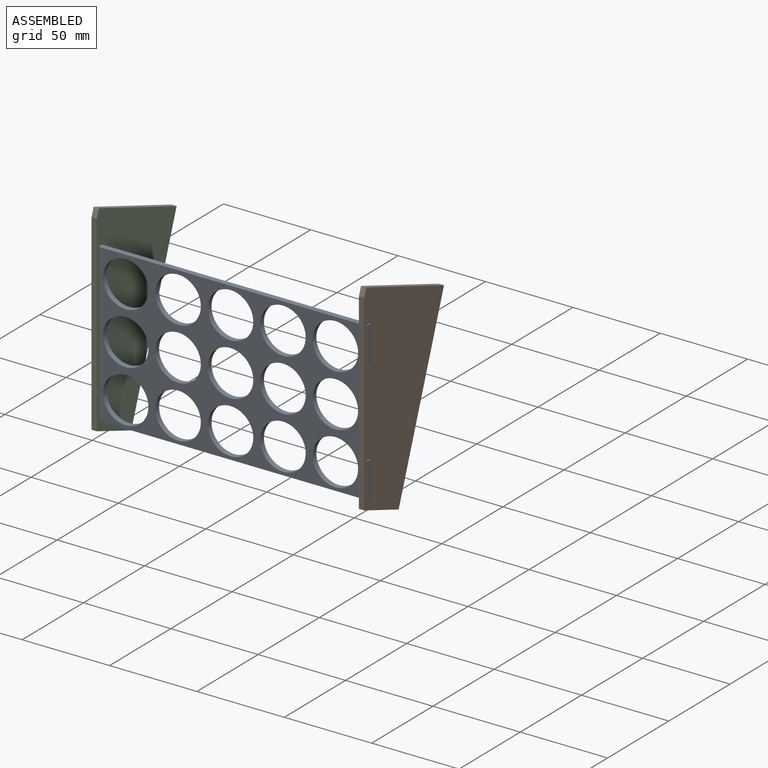
[diagram: assembled view]
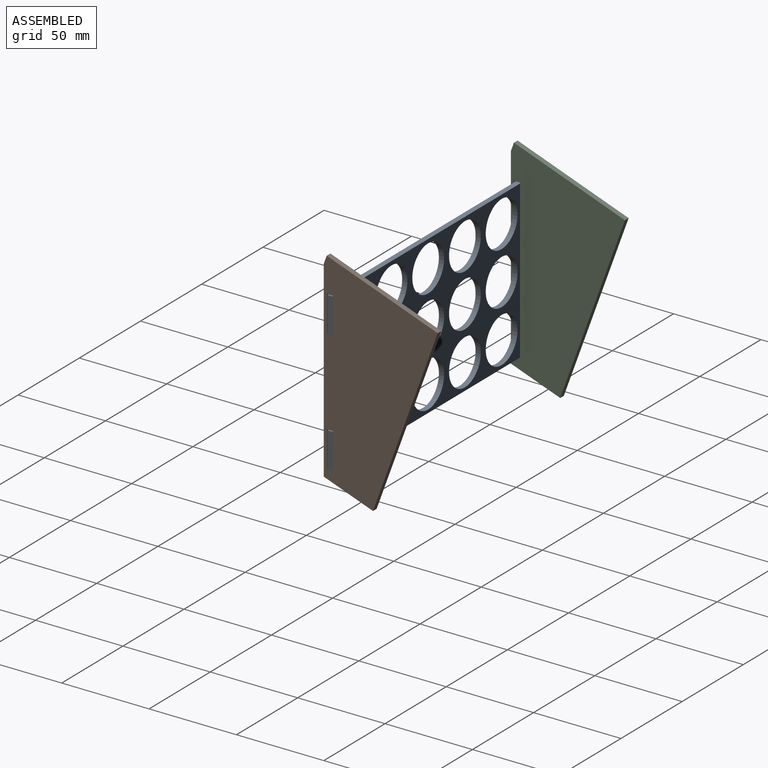
[diagram: assembled view, second angle]
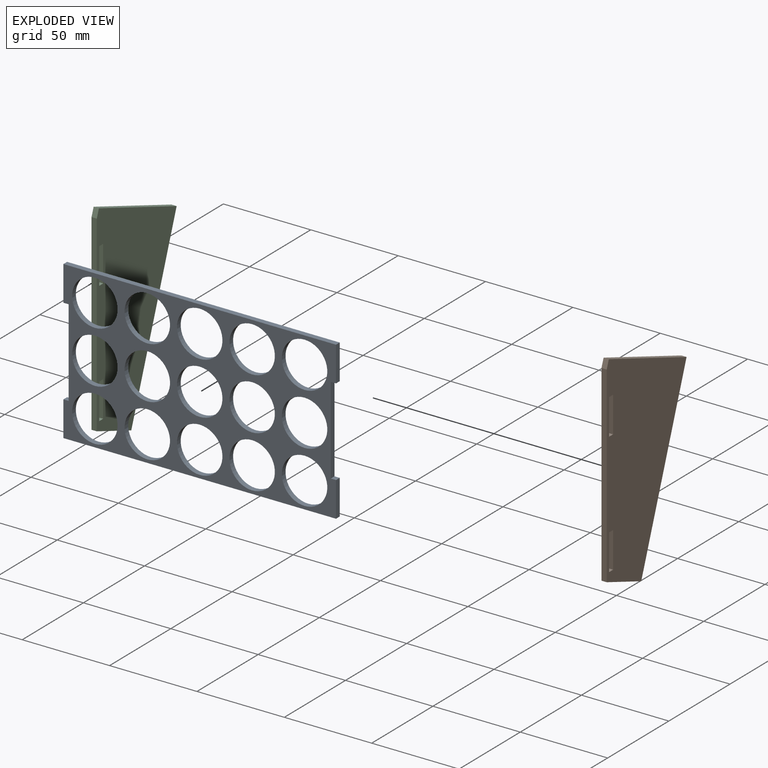
[diagram: exploded view]
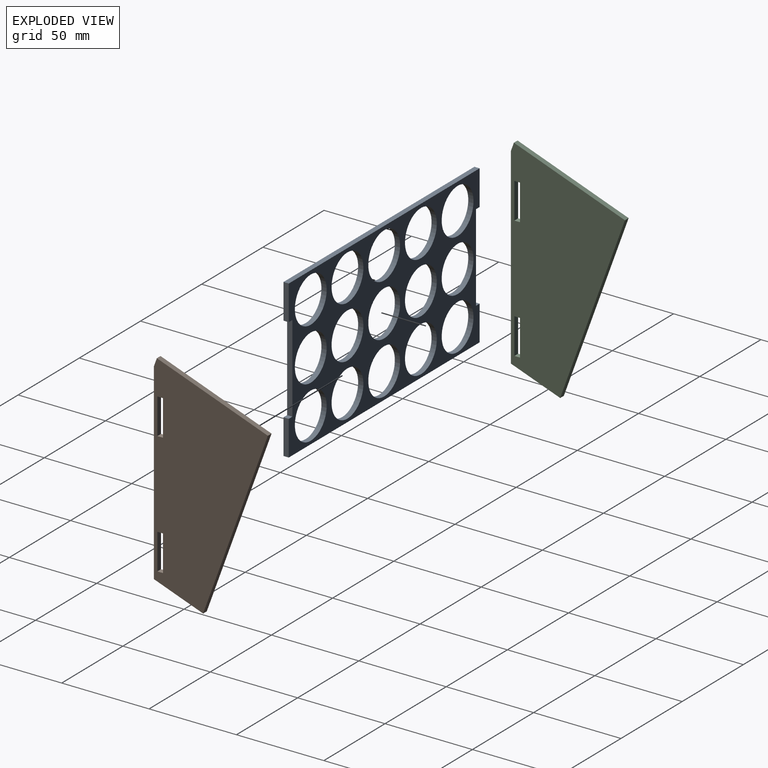
[diagram: exploded view, second angle]
ASSEMBLY  parts=3 mates=6
PART A: 29 faces, bbox 156x3x90 mm
  f0: plane 20x3mm, normal (1,0,0), area 60mm2, adj f1,f25,f27,f28
  f1: plane 156x3mm, normal (0,0,1), area 468mm2, adj f0,f2,f27,f28
  f2: plane 20x3mm, normal (-1,0,0), area 60mm2, adj f1,f3,f27,f28
  f3: plane 3x3mm, normal (0,0,-1), area 9mm2, adj f2,f4,f27,f28
  f4: plane 50x3mm, normal (-1,0,0), area 150mm2, adj f3,f5,f27,f28
  f5: plane 3x3mm, normal (0,0,1), area 9mm2, adj f4,f6,f27,f28
  f6: plane 20x3mm, normal (-1,0,0), area 60mm2, adj f5,f7,f27,f28
  f7: plane 156x3mm, normal (0,0,-1), area 468mm2, adj f6,f8,f27,f28
  f8: plane 20x3mm, normal (1,0,0), area 60mm2, adj f7,f9,f27,f28
  f9: plane 3x3mm, normal (0,0,1), area 9mm2, adj f8,f10,f27,f28
  f10: plane 50x3mm, normal (1,0,0), area 150mm2, adj f9,f25,f27,f28
  f11: cylinder r=13mm len=26mm, axis (0,1,0), area 245mm2, adj f27,f28
  f12: cylinder r=13mm len=26mm, axis (0,1,0), area 245mm2, adj f27,f28
  f13: cylinder r=13mm len=26mm, axis (0,1,0), area 245mm2, adj f27,f28
  f14: cylinder r=13mm len=26mm, axis (0,1,0), area 245mm2, adj f27,f28
  f15: cylinder r=13mm len=26mm, axis (0,1,0), area 245mm2, adj f27,f28
  f16: cylinder r=13mm len=26mm, axis (0,1,0), area 245mm2, adj f27,f28
  f17: cylinder r=13mm len=26mm, axis (0,1,0), area 245mm2, adj f27,f28
  f18: cylinder r=13mm len=26mm, axis (0,1,0), area 245mm2, adj f27,f28
  f19: cylinder r=13mm len=26mm, axis (0,1,0), area 245mm2, adj f27,f28
  f20: cylinder r=13mm len=26mm, axis (0,1,0), area 245mm2, adj f27,f28
  f21: cylinder r=13mm len=26mm, axis (0,1,0), area 245mm2, adj f27,f28
  f22: cylinder r=13mm len=26mm, axis (0,1,0), area 245mm2, adj f27,f28
  f23: cylinder r=13mm len=26mm, axis (0,1,0), area 245mm2, adj f27,f28
  f24: cylinder r=13mm len=26mm, axis (0,1,0), area 245mm2, adj f27,f28
  f25: plane 3x3mm, normal (0,0,-1), area 9mm2, adj f0,f10,f27,f28
  f26: cylinder r=13mm len=26mm, axis (0,1,0), area 245mm2, adj f27,f28
  f27: plane 156x90mm, normal (0,-1,0), area 5776.1mm2, adj f0,f1,f2,f3,f4,f5,f6,f7
  f28: plane 156x90mm, normal (0,1,0), area 5776.1mm2, adj f0,f1,f2,f3,f4,f5,f6,f7
PART B: 15 faces, bbox 108.4x3x67.6 mm
  f0: plane 3.01x3mm, normal (0.94,0,-0.34), area 9.6mm2, adj f1,f12,f13,f14
  f1: plane 19.26x7.01mm, normal (-0.34,0,-0.94), area 61.5mm2, adj f0,f2,f13,f14
  f2: plane 3.01x3mm, normal (-0.94,0,0.34), area 9.6mm2, adj f1,f12,f13,f14
  f3: plane 19.26x7.01mm, normal (-0.34,0,-0.94), area 61.5mm2, adj f4,f10,f13,f14
  f4: plane 3.01x3mm, normal (-0.94,0,0.34), area 9.6mm2, adj f3,f5,f13,f14
  f5: plane 19.26x7.01mm, normal (0.34,0,0.94), area 61.5mm2, adj f4,f10,f13,f14
  f6: plane 67.62x3mm, normal (-1,0,0), area 202.9mm2, adj f7,f11,f13,f14
  f7: plane 108.37x3mm, normal (0,0,-1), area 325.1mm2, adj f6,f8,f13,f14
  f8: plane 30x3mm, normal (1,0,0), area 90mm2, adj f7,f9,f13,f14
  f9: plane 103.37x37.62mm, normal (0.34,0,0.94), area 330mm2, adj f8,f11,f13,f14
  f10: plane 3.01x3mm, normal (0.94,0,-0.34), area 9.6mm2, adj f3,f5,f13,f14
  f11: plane 5x3mm, normal (0,0,1), area 15mm2, adj f6,f9,f13,f14
  f12: plane 19.26x7.01mm, normal (0.34,0,0.94), area 61.5mm2, adj f0,f2,f13,f14
  f13: plane 108.37x67.62mm, normal (0,-1,0), area 5252.3mm2, adj f0,f1,f2,f3,f4,f5,f6,f7
  f14: plane 108.37x67.62mm, normal (0,1,0), area 5252.3mm2, adj f0,f1,f2,f3,f4,f5,f6,f7
PART C: same geometry as B
PLACE A t=(-37.41,41.01,-18.3)mm fixed
PLACE B rot(axis=(0.5,0.5,-0.71),109.2deg) t=(115.59,101.06,68.77)mm
PLACE C rot(axis=(0.5,0.5,-0.71),109.2deg) t=(-37.41,101.06,68.77)mm
MATE planar C.f12 <-> A.f28  axis (0,-1,0) through (-38.91,41.01,-8.05)mm
MATE planar C.f2 <-> A.f7  axis (0,0,1) through (-38.91,39.41,-18.3)mm
MATE planar B.f13 <-> A.f10  axis (-1,0,0) through (112.59,101.06,68.77)mm
MATE planar B.f12 <-> A.f28  axis (0,-1,0) through (114.09,41.01,-8.05)mm
MATE planar A.f4 <-> C.f14  axis (-1,0,0) through (-37.41,39.51,26.7)mm
MATE planar B.f2 <-> A.f7  axis (0,0,1) through (114.09,39.41,-18.3)mm
